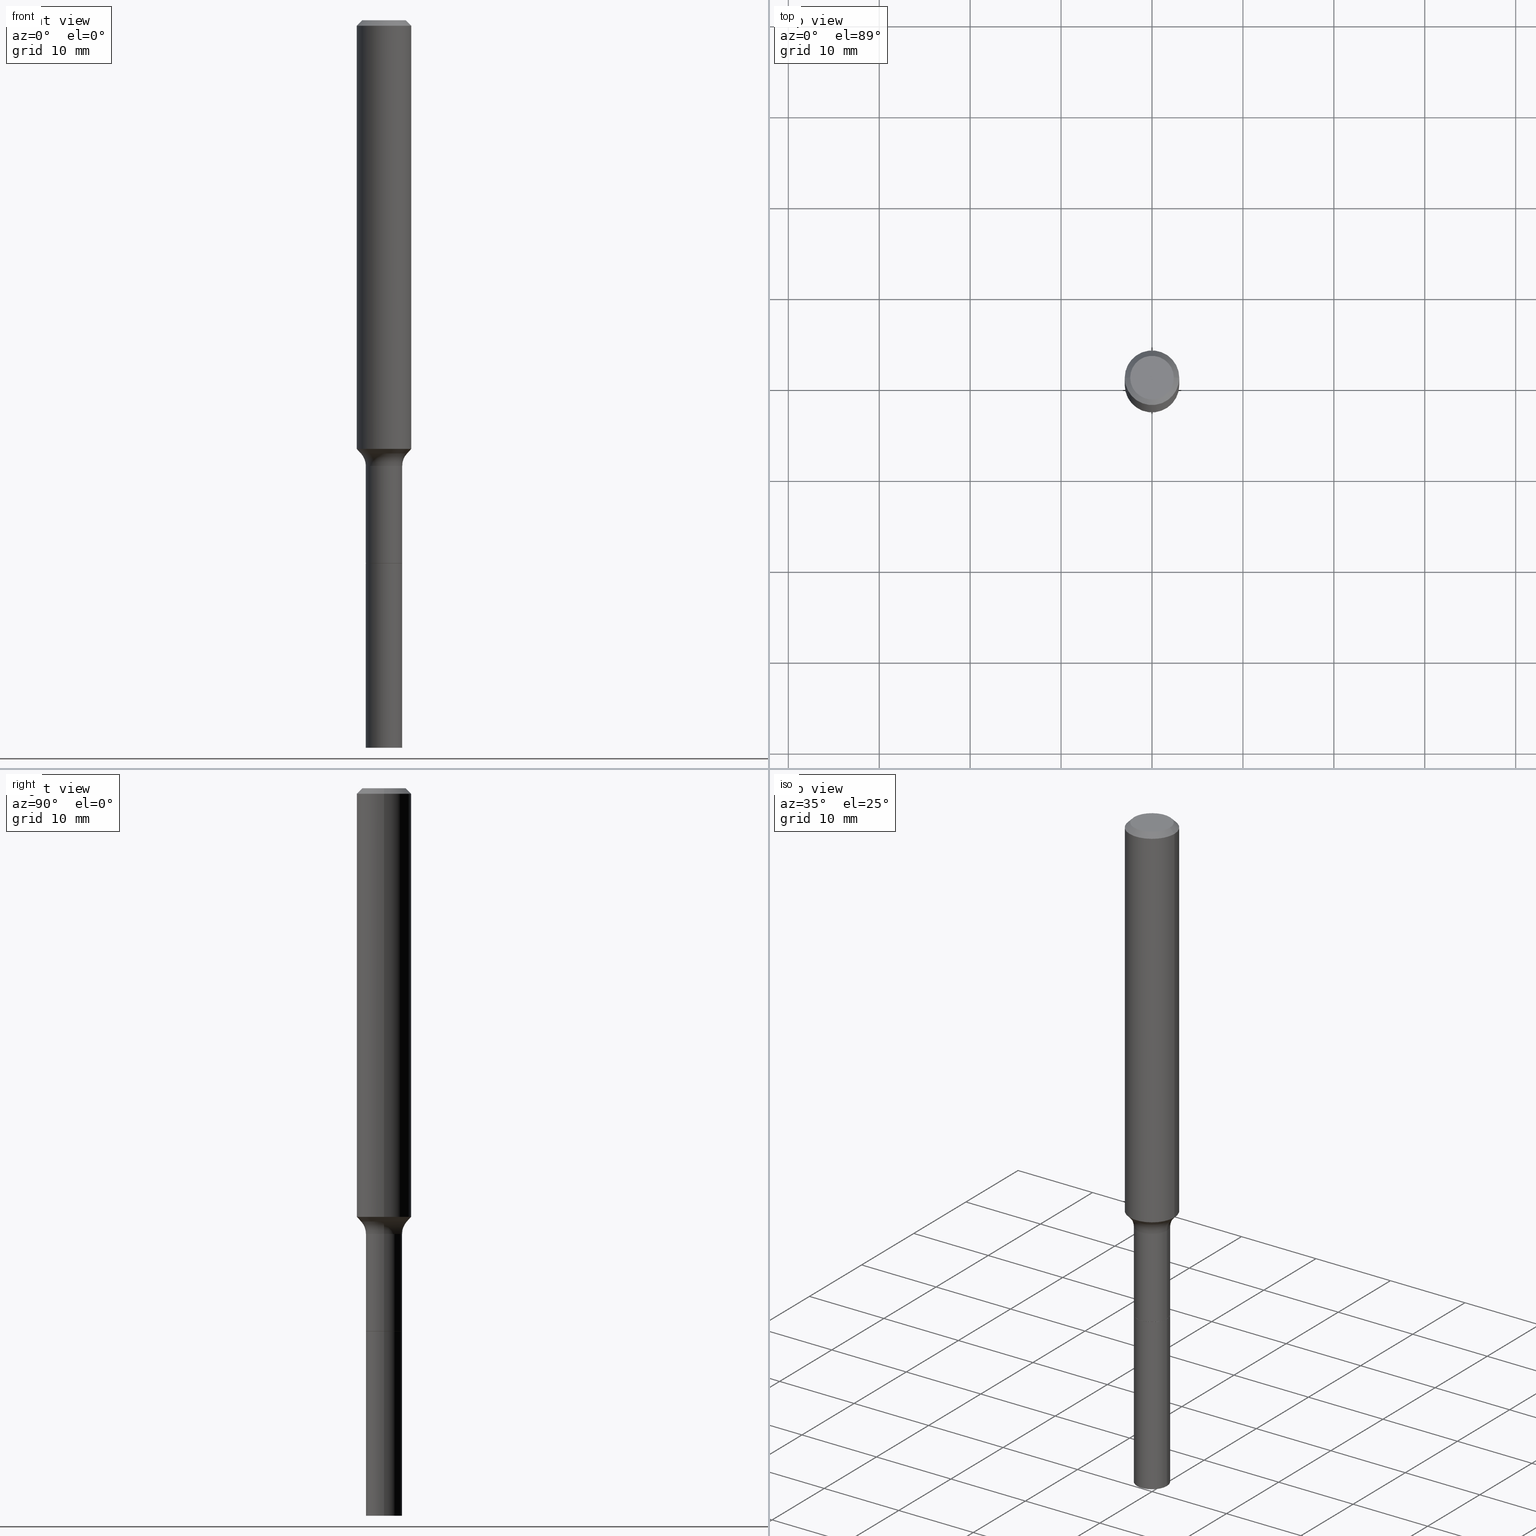
[diagram: canonical four-view strip — front | top / right | iso, engineering-drawing reading convention]
A machine part, canonical four-view strip (front | top / right | iso — engineering-drawing reading convention). The complete STEP part file that produces these views, byte-faithful:
ISO-10303-21;
HEADER;
FILE_DESCRIPTION (( 'STEP AP203' ),
    '1' );
FILE_NAME ('67826.STEP',
    '2025-04-01T15:31:12',
    ( '' ),
    ( '' ),
    'SwSTEP 2.0',
    'SolidWorks 2024',
    '' );
FILE_SCHEMA (( 'CONFIG_CONTROL_DESIGN' ));
ENDSEC;

DATA;
#1 = VECTOR ( 'NONE', #356, 39.37007874015748143 ) ;
#2 = PLANE ( 'NONE',  #381 ) ;
#3 = ORIENTED_EDGE ( 'NONE', *, *, #438, .F. ) ;
#4 = CC_DESIGN_DATE_AND_TIME_ASSIGNMENT ( #269, #466, ( #310 ) ) ;
#5 = CARTESIAN_POINT ( 'NONE',  ( 3.772893820736570314E-46, -5.386692455541008845E-32, -1.542810037565835988E-17 ) ) ;
#6 = ORIENTED_EDGE ( 'NONE', *, *, #74, .T. ) ;
#7 = CARTESIAN_POINT ( 'NONE',  ( 4.538519765556305083E-29, -6.479803392843178830E-15, -1.855889453211333029 ) ) ;
#8 = EDGE_LOOP ( 'NONE', ( #286, #362, #477, #291 ) ) ;
#9 = DIRECTION ( 'NONE',  ( 0.000000000000000000, 0.000000000000000000, 1.000000000000000000 ) ) ;
#10 = ADVANCED_FACE ( 'NONE', ( #102 ), #337, .T. ) ;
#11 = AXIS2_PLACEMENT_3D ( 'NONE', #437, #285, #401 ) ;
#12 = ORIENTED_EDGE ( 'NONE', *, *, #295, .T. ) ;
#13 = MECHANICAL_CONTEXT ( 'NONE', #39, 'mechanical' ) ;
#14 = EDGE_LOOP ( 'NONE', ( #481, #44, #135, #249 ) ) ;
#15 = DIRECTION ( 'NONE',  ( 1.000000000000000000, -6.982962677686265922E-15, 4.883557194083112901E-29 ) ) ;
#16 = ORIENTED_EDGE ( 'NONE', *, *, #338, .T. ) ;
#17 = DIRECTION ( 'NONE',  ( -1.000000000000000000, 6.982962677686266711E-15, 0.000000000000000000 ) ) ;
#18 = DIRECTION ( 'NONE',  ( -2.445468806185136597E-29, 3.491481338843145583E-15, 1.000000000000000000 ) ) ;
#19 = AXIS2_PLACEMENT_3D ( 'NONE', #299, #373, #144 ) ;
#20 = CALENDAR_DATE ( 2025, 1, 4 ) ;
#21 = PLANE ( 'NONE',  #430 ) ;
#22 = COORDINATED_UNIVERSAL_TIME_OFFSET ( 5, 0, .BEHIND. ) ;
#23 = CARTESIAN_POINT ( 'NONE',  ( 5.776197320209327532E-31, -8.246878922347559293E-17, -0.02362000000000014088 ) ) ;
#24 = SECURITY_CLASSIFICATION_LEVEL ( 'unclassified' ) ;
#25 = EDGE_CURVE ( 'NONE', #49, #185, #97, .T. ) ;
#26 = CYLINDRICAL_SURFACE ( 'NONE', #199, 0.07874999999999997280 ) ;
#27 = AXIS2_PLACEMENT_3D ( 'NONE', #288, #322, #363 ) ;
#28 = CC_DESIGN_APPROVAL ( #181, ( #310 ) ) ;
#29 = COORDINATED_UNIVERSAL_TIME_OFFSET ( 5, 0, .BEHIND. ) ;
#30 = CARTESIAN_POINT ( 'NONE',  ( -0.07875000000000018097, -9.042370425541453780E-15, -3.149600000000000399 ) ) ;
#31 = DATE_AND_TIME ( #75, #414 ) ;
#32 = DIRECTION ( 'NONE',  ( 1.000000000000000000, -6.982962677686274599E-15, 0.000000000000000000 ) ) ;
#33 = EDGE_CURVE ( 'NONE', #172, #441, #357, .T. ) ;
#34 = CARTESIAN_POINT ( 'NONE',  ( -0.09447999999999998066, 7.009847083995354710E-16, -3.085620075132147757E-17 ) ) ;
#35 = AXIS2_PLACEMENT_3D ( 'NONE', #379, #18, #103 ) ;
#36 = AXIS2_PLACEMENT_3D ( 'NONE', #490, #372, #457 ) ;
#37 = FACE_OUTER_BOUND ( 'NONE', #224, .T. ) ;
#38 = ORIENTED_EDGE ( 'NONE', *, *, #146, .F. ) ;
#39 = APPLICATION_CONTEXT ( 'configuration controlled 3d designs of mechanical parts and assemblies' ) ;
#40 = PLANE ( 'NONE',  #422 ) ;
#41 = ORIENTED_EDGE ( 'NONE', *, *, #219, .F. ) ;
#42 = CARTESIAN_POINT ( 'NONE',  ( 7.702248551960706711E-29, -1.099676962482037231E-14, -3.149600000000000399 ) ) ;
#43 = ADVANCED_FACE ( 'NONE', ( #494 ), #21, .F. ) ;
#44 = ORIENTED_EDGE ( 'NONE', *, *, #91, .T. ) ;
#45 = CIRCLE ( 'NONE', #27, 0.07875000000000018097 ) ;
#46 = DIRECTION ( 'NONE',  ( -2.445468806185136597E-29, 3.491481338843145583E-15, 1.000000000000000000 ) ) ;
#47 = CIRCLE ( 'NONE', #201, 0.09447999999999998066 ) ;
#48 = ORIENTED_EDGE ( 'NONE', *, *, #295, .F. ) ;
#49 = VERTEX_POINT ( 'NONE', #417 ) ;
#50 = ADVANCED_FACE ( 'NONE', ( #138 ), #122, .T. ) ;
#51 = MANIFOLD_SOLID_BREP ( 'Body-Move/Copy2[2]', #450 ) ;
#52 = VERTEX_POINT ( 'NONE', #267 ) ;
#53 = LINE ( 'NONE', #298, #107 ) ;
#54 = AXIS2_PLACEMENT_3D ( 'NONE', #234, #280, #309 ) ;
#55 = ORIENTED_EDGE ( 'NONE', *, *, #316, .T. ) ;
#56 = VECTOR ( 'NONE', #320, 39.37007874015748143 ) ;
#57 = CARTESIAN_POINT ( 'NONE',  ( -0.1180999999999999966, 7.422191030112725094E-16, -0.02362000000000014088 ) ) ;
#58 = ORIENTED_EDGE ( 'NONE', *, *, #101, .F. ) ;
#59 = DIRECTION ( 'NONE',  ( -2.445468806185136597E-29, 3.491481338843145583E-15, 1.000000000000000000 ) ) ;
#60 = DIRECTION ( 'NONE',  ( -2.438088387897960049E-29, 3.491481338843145188E-15, 1.000000000000000000 ) ) ;
#61 = DIRECTION ( 'NONE',  ( 0.7071067811866199593, -2.468850131083015945E-15, 0.7071067811864750752 ) ) ;
#62 = CARTESIAN_POINT ( 'NONE',  ( 0.000000000000000000, 0.000000000000000000, 0.000000000000000000 ) ) ;
#63 = AXIS2_PLACEMENT_3D ( 'NONE', #336, #463, #265 ) ;
#64 = PERSON_AND_ORGANIZATION ( #253, #261 ) ;
#65 = CARTESIAN_POINT ( 'NONE',  ( 0.000000000000000000, 0.000000000000000000, 0.000000000000000000 ) ) ;
#66 = ADVANCED_FACE ( 'NONE', ( #421 ), #382, .T. ) ;
#67 = LINE ( 'NONE', #114, #132 ) ;
#68 = ORIENTED_EDGE ( 'NONE', *, *, #448, .T. ) ;
#69 = CARTESIAN_POINT ( 'NONE',  ( 0.07825000000000000011, -8.753492864613649504E-15, -2.350600000000000467 ) ) ;
#70 = AXIS2_PLACEMENT_3D ( 'NONE', #23, #229, #110 ) ;
#71 = CONICAL_SURFACE ( 'NONE', #151, 0.1180999999999999966, 0.7853981633974463916 ) ;
#72 = APPROVAL_DATE_TIME ( #305, #469 ) ;
#73 = CARTESIAN_POINT ( 'NONE',  ( -0.1181000000000001077, 8.391509709326790846E-16, -5.809262341591049389E-30 ) ) ;
#74 = EDGE_CURVE ( 'NONE', #204, #165, #413, .T. ) ;
#75 = CALENDAR_DATE ( 2025, 1, 4 ) ;
#76 = CARTESIAN_POINT ( 'NONE',  ( -0.1002417038704665475, -5.834407482595595878E-15, -1.875040131195000237 ) ) ;
#77 = ADVANCED_FACE ( 'NONE', ( #136 ), #471, .T. ) ;
#78 = DIRECTION ( 'NONE',  ( -6.982962677686266711E-15, -1.000000000000000000, 3.491481338843145583E-15 ) ) ;
#79 =( GEOMETRIC_REPRESENTATION_CONTEXT ( 3 ) GLOBAL_UNCERTAINTY_ASSIGNED_CONTEXT ( ( #111 ) ) GLOBAL_UNIT_ASSIGNED_CONTEXT ( ( #184, #262, #94 ) ) REPRESENTATION_CONTEXT ( 'NONE', 'WORKASPACE' ) );
#80 = CARTESIAN_POINT ( 'NONE',  ( 4.538519765556305083E-29, -6.479803392843178830E-15, -1.855889453211333029 ) ) ;
#81 = ORIENTED_EDGE ( 'NONE', *, *, #319, .F. ) ;
#82 = CC_DESIGN_PERSON_AND_ORGANIZATION_ASSIGNMENT ( #434, #308, ( #310 ) ) ;
#83 = CARTESIAN_POINT ( 'NONE',  ( 0.1587499999999999190, -7.845707716514428206E-15, -1.929599999999999982 ) ) ;
#84 = EDGE_LOOP ( 'NONE', ( #289, #496, #518, #174 ) ) ;
#85 = DIRECTION ( 'NONE',  ( -2.445468806185136597E-29, 3.491481338843145583E-15, 1.000000000000000000 ) ) ;
#86 = ORIENTED_EDGE ( 'NONE', *, *, #273, .T. ) ;
#87 = AXIS2_PLACEMENT_3D ( 'NONE', #161, #118, #397 ) ;
#88 = CARTESIAN_POINT ( 'NONE',  ( 4.585352151182659149E-29, -6.546667627649346725E-15, -1.875040131195000237 ) ) ;
#89 = EDGE_CURVE ( 'NONE', #283, #486, #459, .T. ) ;
#90 = ORIENTED_EDGE ( 'NONE', *, *, #108, .F. ) ;
#91 = EDGE_CURVE ( 'NONE', #165, #220, #67, .T. ) ;
#92 = DIRECTION ( 'NONE',  ( -2.445468806185136877E-29, 3.491481338843145188E-15, 1.000000000000000000 ) ) ;
#93 = DIRECTION ( 'NONE',  ( 1.000000000000000000, -6.982962677686267499E-15, 4.875432709231658792E-29 ) ) ;
#94 =( NAMED_UNIT ( * ) SI_UNIT ( $, .STERADIAN. ) SOLID_ANGLE_UNIT ( ) );
#95 = ORIENTED_EDGE ( 'NONE', *, *, #475, .F. ) ;
#96 = LENGTH_MEASURE_WITH_UNIT ( LENGTH_MEASURE( 0.02539999999999999897 ), #495 );
#97 = CIRCLE ( 'NONE', #63, 0.1002417038704665475 ) ;
#98 = VERTEX_POINT ( 'NONE', #227 ) ;
#99 = APPROVAL_PERSON_ORGANIZATION ( #187, #469, #386 ) ;
#100 = PLANE ( 'NONE',  #504 ) ;
#101 = EDGE_CURVE ( 'NONE', #125, #243, #270, .T. ) ;
#102 = FACE_OUTER_BOUND ( 'NONE', #359, .T. ) ;
#103 = DIRECTION ( 'NONE',  ( 1.000000000000000000, -6.982962677686267499E-15, 0.000000000000000000 ) ) ;
#104 = PERSON_AND_ORGANIZATION ( #253, #261 ) ;
#105 = DIRECTION ( 'NONE',  ( -0.6819983600624925923, 7.399397606724264488E-15, 0.7313537016191760110 ) ) ;
#106 = CONICAL_SURFACE ( 'NONE', #54, 0.1002417038704665475, 0.7504915783575536459 ) ;
#107 = VECTOR ( 'NONE', #61, 39.37007874015748143 ) ;
#108 = EDGE_CURVE ( 'NONE', #52, #247, #390, .T. ) ;
#109 = CALENDAR_DATE ( 2025, 1, 4 ) ;
#110 = DIRECTION ( 'NONE',  ( 1.000000000000000000, -6.982962677686266711E-15, 0.000000000000000000 ) ) ;
#111 = UNCERTAINTY_MEASURE_WITH_UNIT (LENGTH_MEASURE( 1.000000000000000082E-05 ), #184, 'distance_accuracy_value', 'NONE');
#112 = PERSON_AND_ORGANIZATION ( #253, #261 ) ;
#113 = CARTESIAN_POINT ( 'NONE',  ( 0.07875000000000000056, -8.756984345952492512E-15, -2.350600000000000467 ) ) ;
#114 = CARTESIAN_POINT ( 'NONE',  ( 0.1180999999999999966, -8.926936027602933910E-16, -0.02362000000000014088 ) ) ;
#115 = CIRCLE ( 'NONE', #176, 0.07875000000000000056 ) ;
#116 = VECTOR ( 'NONE', #140, 39.37007874015748143 ) ;
#117 = DIRECTION ( 'NONE',  ( -2.445468806185136597E-29, 3.491481338843145583E-15, 1.000000000000000000 ) ) ;
#118 = DIRECTION ( 'NONE',  ( -2.445468806185136597E-29, 3.491481338843145583E-15, 1.000000000000000000 ) ) ;
#119 = DIRECTION ( 'NONE',  ( -2.445468806185136597E-29, 3.491481338843145583E-15, 1.000000000000000000 ) ) ;
#120 = ORIENTED_EDGE ( 'NONE', *, *, #345, .T. ) ;
#121 = CC_DESIGN_PERSON_AND_ORGANIZATION_ASSIGNMENT ( #311, #279, ( #349 ) ) ;
#122 = CONICAL_SURFACE ( 'NONE', #35, 0.07825000000000000011, 0.7853981633975507526 ) ;
#123 = AXIS2_PLACEMENT_3D ( 'NONE', #318, #119, #179 ) ;
#124 = DIRECTION ( 'NONE',  ( -2.445468806185136597E-29, 3.491481338843145583E-15, 1.000000000000000000 ) ) ;
#125 = VERTEX_POINT ( 'NONE', #232 ) ;
#126 = PRODUCT ( '67826', '67826', '', ( #13 ) ) ;
#127 = DIRECTION ( 'NONE',  ( 1.000000000000000000, -6.982962677686267499E-15, 4.875432709231658792E-29 ) ) ;
#128 = ORIENTED_EDGE ( 'NONE', *, *, #512, .T. ) ;
#129 = DIRECTION ( 'NONE',  ( 1.000000000000000000, -6.982962677686268288E-15, 0.000000000000000000 ) ) ;
#130 = ADVANCED_FACE ( 'NONE', ( #389 ), #106, .T. ) ;
#131 = ORIENTED_EDGE ( 'NONE', *, *, #512, .F. ) ;
#132 = VECTOR ( 'NONE', #433, 39.37007874015748143 ) ;
#133 = CARTESIAN_POINT ( 'NONE',  ( -0.07825000000000000011, -7.648427117178309273E-15, -2.350600000000000467 ) ) ;
#134 = CC_DESIGN_SECURITY_CLASSIFICATION ( #293, ( #349 ) ) ;
#135 = ORIENTED_EDGE ( 'NONE', *, *, #146, .T. ) ;
#136 = FACE_OUTER_BOUND ( 'NONE', #84, .T. ) ;
#137 = LINE ( 'NONE', #493, #116 ) ;
#138 = FACE_OUTER_BOUND ( 'NONE', #449, .T. ) ;
#139 = CC_DESIGN_PERSON_AND_ORGANIZATION_ASSIGNMENT ( #510, #384, ( #126 ) ) ;
#140 = DIRECTION ( 'NONE',  ( -2.445468806185136877E-29, 3.491481338843145188E-15, 1.000000000000000000 ) ) ;
#141 = VECTOR ( 'NONE', #467, 39.37007874015748143 ) ;
#142 = ORIENTED_EDGE ( 'NONE', *, *, #391, .F. ) ;
#143 = CARTESIAN_POINT ( 'NONE',  ( 0.07875000000000000056, -8.755238605283071797E-15, -2.350100000000000300 ) ) ;
#144 = DIRECTION ( 'NONE',  ( 1.000000000000000000, -6.982962677686267499E-15, 0.000000000000000000 ) ) ;
#145 = APPROVAL_STATUS ( 'not_yet_approved' ) ;
#146 = EDGE_CURVE ( 'NONE', #220, #247, #300, .T. ) ;
#147 = EDGE_LOOP ( 'NONE', ( #90, #452, #128, #342 ) ) ;
#148 = CALENDAR_DATE ( 2025, 1, 4 ) ;
#149 = LINE ( 'NONE', #468, #141 ) ;
#150 = CIRCLE ( 'NONE', #11, 0.07825000000000000011 ) ;
#151 = AXIS2_PLACEMENT_3D ( 'NONE', #296, #418, #17 ) ;
#152 = APPROVAL_DATE_TIME ( #155, #181 ) ;
#153 = DIRECTION ( 'NONE',  ( -2.445468806185136597E-29, 3.491481338843145583E-15, 1.000000000000000000 ) ) ;
#154 = EDGE_LOOP ( 'NONE', ( #41, #294, #16, #86 ) ) ;
#155 = DATE_AND_TIME ( #148, #405 ) ;
#156 = DIRECTION ( 'NONE',  ( 1.000000000000000000, -6.982962677686266711E-15, 0.000000000000000000 ) ) ;
#157 = CYLINDRICAL_SURFACE ( 'NONE', #193, 0.07874999999999997280 ) ;
#158 = CIRCLE ( 'NONE', #374, 0.07999999999999990452 ) ;
#159 = VECTOR ( 'NONE', #92, 39.37007874015748143 ) ;
#160 = LINE ( 'NONE', #76, #465 ) ;
#161 = CARTESIAN_POINT ( 'NONE',  ( 4.718776608414840041E-29, -6.737162391431733996E-15, -1.929599999999999982 ) ) ;
#162 = ADVANCED_FACE ( 'NONE', ( #387 ), #26, .T. ) ;
#163 = VERTEX_POINT ( 'NONE', #30 ) ;
#164 = CARTESIAN_POINT ( 'NONE',  ( -0.07874999999999994504, -6.911693938512427817E-15, -1.929599999999999982 ) ) ;
#165 = VERTEX_POINT ( 'NONE', #236 ) ;
#166 = AXIS2_PLACEMENT_3D ( 'NONE', #62, #225, #256 ) ;
#167 = CIRCLE ( 'NONE', #36, 0.07874999999999994504 ) ;
#168 = DIRECTION ( 'NONE',  ( 2.438088387897960049E-29, -3.491481338843145188E-15, -1.000000000000000000 ) ) ;
#169 = EDGE_LOOP ( 'NONE', ( #6, #183 ) ) ;
#170 = EDGE_CURVE ( 'NONE', #185, #49, #347, .T. ) ;
#171 = FACE_OUTER_BOUND ( 'NONE', #206, .T. ) ;
#172 = VERTEX_POINT ( 'NONE', #69 ) ;
#173 = DIRECTION ( 'NONE',  ( -2.445468806185136877E-29, 3.491481338843145188E-15, 1.000000000000000000 ) ) ;
#174 = ORIENTED_EDGE ( 'NONE', *, *, #189, .T. ) ;
#175 = DIMENSIONAL_EXPONENTS ( 1.000000000000000000, 0.000000000000000000, 0.000000000000000000, 0.000000000000000000, 0.000000000000000000, 0.000000000000000000, 0.000000000000000000 ) ;
#176 = AXIS2_PLACEMENT_3D ( 'NONE', #435, #427, #464 ) ;
#177 = DIRECTION ( 'NONE',  ( -0.7071067811865461294, 2.468850131082242072E-15, -0.7071067811865489050 ) ) ;
#178 = ORIENTED_EDGE ( 'NONE', *, *, #89, .F. ) ;
#179 = DIRECTION ( 'NONE',  ( 1.000000000000000000, -6.982962677686265922E-15, 4.883557194083112901E-29 ) ) ;
#180 = EDGE_LOOP ( 'NONE', ( #376, #55, #400, #178 ) ) ;
#181 = APPROVAL ( #505, 'UNSPECIFIED' ) ;
#182 = DIRECTION ( 'NONE',  ( 1.000000000000000000, -6.982962677686267499E-15, 0.000000000000000000 ) ) ;
#183 = ORIENTED_EDGE ( 'NONE', *, *, #404, .T. ) ;
#184 =( CONVERSION_BASED_UNIT ( 'INCH', #96 ) LENGTH_UNIT ( ) NAMED_UNIT ( #175 ) );
#185 = VERTEX_POINT ( 'NONE', #346 ) ;
#186 = CC_DESIGN_APPROVAL ( #507, ( #349 ) ) ;
#187 = PERSON_AND_ORGANIZATION ( #253, #261 ) ;
#188 = DIRECTION ( 'NONE',  ( -2.445468806185136597E-29, 3.491481338843145583E-15, 1.000000000000000000 ) ) ;
#189 = EDGE_CURVE ( 'NONE', #247, #220, #365, .T. ) ;
#190 = CARTESIAN_POINT ( 'NONE',  ( -0.1587499999999999190, -5.609175798412575330E-15, -1.929599999999999982 ) ) ;
#191 = CALENDAR_DATE ( 2025, 1, 4 ) ;
#192 = CARTESIAN_POINT ( 'NONE',  ( 5.748318975818783261E-29, -8.207076035084699166E-15, -2.350600000000000467 ) ) ;
#193 = AXIS2_PLACEMENT_3D ( 'NONE', #317, #473, #198 ) ;
#194 = AXIS2_PLACEMENT_3D ( 'NONE', #7, #223, #182 ) ;
#195 = COORDINATED_UNIVERSAL_TIME_OFFSET ( 5, 0, .BEHIND. ) ;
#196 = CARTESIAN_POINT ( 'NONE',  ( 4.585352151182659149E-29, -6.546667627649346725E-15, -1.875040131195000237 ) ) ;
#197 = DIRECTION ( 'NONE',  ( 1.000000000000000000, -6.982962677686267499E-15, 4.876176775795935793E-29 ) ) ;
#198 = DIRECTION ( 'NONE',  ( 1.000000000000000000, -6.982962677686267499E-15, 4.876176775795935793E-29 ) ) ;
#199 = AXIS2_PLACEMENT_3D ( 'NONE', #65, #275, #197 ) ;
#200 = CIRCLE ( 'NONE', #194, 0.1181000000000002187 ) ;
#201 = AXIS2_PLACEMENT_3D ( 'NONE', #367, #476, #127 ) ;
#202 = ADVANCED_FACE ( 'NONE', ( #385 ), #470, .T. ) ;
#203 = DIRECTION ( 'NONE',  ( 1.000000000000000000, -6.982962677686254878E-15, 0.000000000000000000 ) ) ;
#204 = VERTEX_POINT ( 'NONE', #34 ) ;
#205 = DIRECTION ( 'NONE',  ( -2.445468806185136597E-29, 3.491481338843145583E-15, 1.000000000000000000 ) ) ;
#206 = EDGE_LOOP ( 'NONE', ( #304, #216 ) ) ;
#207 = CARTESIAN_POINT ( 'NONE',  ( 5.748318975818783261E-29, -8.207076035084699166E-15, -2.350600000000000467 ) ) ;
#208 = ORIENTED_EDGE ( 'NONE', *, *, #448, .F. ) ;
#209 = CIRCLE ( 'NONE', #87, 0.07874999999999994504 ) ;
#210 = CARTESIAN_POINT ( 'NONE',  ( 0.1002417038704665475, -7.246651704524493594E-15, -1.875040131195000237 ) ) ;
#211 = ORIENTED_EDGE ( 'NONE', *, *, #498, .F. ) ;
#212 = EDGE_CURVE ( 'NONE', #486, #283, #115, .T. ) ;
#213 = CARTESIAN_POINT ( 'NONE',  ( 0.1181000000000002187, -7.304491285077929459E-15, -1.855889453211333029 ) ) ;
#214 = EDGE_LOOP ( 'NONE', ( #81, #142 ) ) ;
#215 = CARTESIAN_POINT ( 'NONE',  ( 0.000000000000000000, 0.000000000000000000, 0.000000000000000000 ) ) ;
#216 = ORIENTED_EDGE ( 'NONE', *, *, #246, .T. ) ;
#217 = AXIS2_PLACEMENT_3D ( 'NONE', #499, #302, #344 ) ;
#218 = AXIS2_PLACEMENT_3D ( 'NONE', #239, #46, #282 ) ;
#219 = EDGE_CURVE ( 'NONE', #185, #402, #241, .T. ) ;
#220 = VERTEX_POINT ( 'NONE', #503 ) ;
#221 = DIRECTION ( 'NONE',  ( -1.000000000000000000, 6.982962677686265922E-15, -4.876176775795935793E-29 ) ) ;
#222 = ORIENTED_EDGE ( 'NONE', *, *, #383, .T. ) ;
#223 = DIRECTION ( 'NONE',  ( -2.445468806185136597E-29, 3.491481338843145583E-15, 1.000000000000000000 ) ) ;
#224 = EDGE_LOOP ( 'NONE', ( #377, #222, #240, #58 ) ) ;
#225 = DIRECTION ( 'NONE',  ( -2.445468806185136597E-29, 3.491481338843145583E-15, 1.000000000000000000 ) ) ;
#226 = APPROVAL_PERSON_ORGANIZATION ( #424, #507, #230 ) ;
#227 = CARTESIAN_POINT ( 'NONE',  ( 0.07874999999999994504, -7.287070702299526553E-15, -1.929599999999999982 ) ) ;
#228 = APPROVAL_DATE_TIME ( #31, #507 ) ;
#229 = DIRECTION ( 'NONE',  ( -2.445468806185136597E-29, 3.491481338843145583E-15, 1.000000000000000000 ) ) ;
#230 = APPROVAL_ROLE ( '' ) ;
#231 = ADVANCED_FACE ( 'NONE', ( #276 ), #157, .T. ) ;
#232 = CARTESIAN_POINT ( 'NONE',  ( 0.07875000000000018097, -1.154667793568816723E-14, -3.149600000000000399 ) ) ;
#233 = CC_DESIGN_APPROVAL ( #469, ( #293 ) ) ;
#234 = CARTESIAN_POINT ( 'NONE',  ( 4.585352151182659149E-29, -6.546667627649346725E-15, -1.875040131195000237 ) ) ;
#235 = PERSON_AND_ORGANIZATION_ROLE ( 'classification_officer' ) ;
#236 = CARTESIAN_POINT ( 'NONE',  ( 0.09447999999999998066, -7.704367267948738690E-16, -3.085620075131172158E-17 ) ) ;
#237 = EDGE_CURVE ( 'NONE', #185, #52, #160, .T. ) ;
#238 = EDGE_CURVE ( 'NONE', #441, #283, #149, .T. ) ;
#239 = CARTESIAN_POINT ( 'NONE',  ( 5.748318975818783261E-29, -8.207076035084699166E-15, -2.350600000000000467 ) ) ;
#240 = ORIENTED_EDGE ( 'NONE', *, *, #361, .F. ) ;
#241 = CIRCLE ( 'NONE', #487, 0.07999999999999990452 ) ;
#242 = CARTESIAN_POINT ( 'NONE',  ( -0.1180999999999999966, -2.441985120100647369E-15, -0.02362000000000014088 ) ) ;
#243 = VERTEX_POINT ( 'NONE', #113 ) ;
#244 = PRODUCT_DEFINITION_SHAPE ( 'NONE', 'NONE',  #310 ) ;
#245 = CYLINDRICAL_SURFACE ( 'NONE', #307, 0.07875000000000008382 ) ;
#246 = EDGE_CURVE ( 'NONE', #458, #243, #478, .T. ) ;
#247 = VERTEX_POINT ( 'NONE', #242 ) ;
#248 = DIRECTION ( 'NONE',  ( 1.000000000000000000, -6.982962677686267499E-15, 0.000000000000000000 ) ) ;
#249 = ORIENTED_EDGE ( 'NONE', *, *, #484, .F. ) ;
#250 = AXIS2_PLACEMENT_3D ( 'NONE', #297, #514, #352 ) ;
#251 = AXIS2_PLACEMENT_3D ( 'NONE', #42, #447, #252 ) ;
#252 = DIRECTION ( 'NONE',  ( 1.000000000000000000, -6.982962677686269866E-15, 0.000000000000000000 ) ) ;
#253 = PERSON ( 'UNSPECIFIED', 'UNSPECIFIED', 'UNSPECIFIED', ('UNSPECIFIED'), ('UNSPECIFIED'), ('UNSPECIFIED') ) ;
#254 = ORIENTED_EDGE ( 'NONE', *, *, #170, .F. ) ;
#255 = CARTESIAN_POINT ( 'NONE',  ( 0.07874999999999997280, -5.499083108677933457E-16, 3.839989210939298316E-30 ) ) ;
#256 = DIRECTION ( 'NONE',  ( 1.000000000000000000, -6.982962677686266711E-15, 4.876176775795935793E-29 ) ) ;
#257 = ADVANCED_FACE ( 'NONE', ( #37 ), #245, .T. ) ;
#258 = DIRECTION ( 'NONE',  ( 1.000000000000000000, 0.000000000000000000, 0.000000000000000000 ) ) ;
#259 = ORIENTED_EDGE ( 'NONE', *, *, #33, .T. ) ;
#260 = CLOSED_SHELL ( 'NONE', ( #257, #456, #202, #396 ) ) ;
#261 = ORGANIZATION ( 'UNSPECIFIED', 'UNSPECIFIED', '' ) ;
#262 =( NAMED_UNIT ( * ) PLANE_ANGLE_UNIT ( ) SI_UNIT ( $, .RADIAN. ) );
#263 = DIRECTION ( 'NONE',  ( 1.000000000000000000, -6.982962677686265922E-15, 4.876176775795935793E-29 ) ) ;
#264 = FACE_OUTER_BOUND ( 'NONE', #14, .T. ) ;
#265 = DIRECTION ( 'NONE',  ( 1.000000000000000000, -6.982962677686266711E-15, 0.000000000000000000 ) ) ;
#266 = LINE ( 'NONE', #331, #480 ) ;
#267 = CARTESIAN_POINT ( 'NONE',  ( -0.1181000000000002187, -5.640652421910499055E-15, -1.855889453211333029 ) ) ;
#268 = AXIS2_PLACEMENT_3D ( 'NONE', #425, #117, #32 ) ;
#269 = DATE_AND_TIME ( #109, #366 ) ;
#270 = LINE ( 'NONE', #392, #355 ) ;
#271 = APPROVAL_STATUS ( 'not_yet_approved' ) ;
#272 = CARTESIAN_POINT ( 'NONE',  ( 5.748318975818783261E-29, -8.207076035084699166E-15, -2.350600000000000467 ) ) ;
#273 = EDGE_CURVE ( 'NONE', #98, #402, #209, .T. ) ;
#274 = PERSON_AND_ORGANIZATION_ROLE ( 'design_supplier' ) ;
#275 = DIRECTION ( 'NONE',  ( -2.445468806185136597E-29, 3.491481338843145583E-15, 1.000000000000000000 ) ) ;
#276 = FACE_OUTER_BOUND ( 'NONE', #328, .T. ) ;
#277 = CIRCLE ( 'NONE', #375, 0.1181000000000002187 ) ;
#278 = CIRCLE ( 'NONE', #218, 0.07875000000000000056 ) ;
#279 = PERSON_AND_ORGANIZATION_ROLE ( 'creator' ) ;
#280 = DIRECTION ( 'NONE',  ( -2.445468806185136597E-29, 3.491481338843145583E-15, 1.000000000000000000 ) ) ;
#281 = DIRECTION ( 'NONE',  ( 1.000000000000000000, -6.982962677686267499E-15, 0.000000000000000000 ) ) ;
#282 = DIRECTION ( 'NONE',  ( 1.000000000000000000, -6.982962677686261977E-15, 0.000000000000000000 ) ) ;
#283 = VERTEX_POINT ( 'NONE', #439 ) ;
#284 = VECTOR ( 'NONE', #177, 39.37007874015748143 ) ;
#285 = DIRECTION ( 'NONE',  ( -2.445468806185136597E-29, 3.491481338843145583E-15, 1.000000000000000000 ) ) ;
#286 = ORIENTED_EDGE ( 'NONE', *, *, #383, .F. ) ;
#287 = CC_DESIGN_PERSON_AND_ORGANIZATION_ASSIGNMENT ( #64, #235, ( #293 ) ) ;
#288 = CARTESIAN_POINT ( 'NONE',  ( 7.702248551960706711E-29, -1.099676962482037231E-14, -3.149600000000000399 ) ) ;
#289 = ORIENTED_EDGE ( 'NONE', *, *, #91, .F. ) ;
#290 = FACE_OUTER_BOUND ( 'NONE', #180, .T. ) ;
#291 = ORIENTED_EDGE ( 'NONE', *, *, #246, .F. ) ;
#292 = VECTOR ( 'NONE', #399, 39.37007874015748143 ) ;
#293 = SECURITY_CLASSIFICATION ( '', '', #24 ) ;
#294 = ORIENTED_EDGE ( 'NONE', *, *, #25, .F. ) ;
#295 = EDGE_CURVE ( 'NONE', #49, #368, #485, .T. ) ;
#296 = CARTESIAN_POINT ( 'NONE',  ( 5.776197320209327532E-31, -8.246878922347559293E-17, -0.02362000000000014088 ) ) ;
#297 = CARTESIAN_POINT ( 'NONE',  ( 5.776197320209327532E-31, -8.246878922347559293E-17, -0.02362000000000014088 ) ) ;
#298 = CARTESIAN_POINT ( 'NONE',  ( 0.07825000000000000011, -8.753492864613649504E-15, -2.350600000000000467 ) ) ;
#299 = CARTESIAN_POINT ( 'NONE',  ( 5.748318975818783261E-29, -8.207076035084699166E-15, -2.350600000000000467 ) ) ;
#300 = CIRCLE ( 'NONE', #70, 0.1180999999999999966 ) ;
#301 = CARTESIAN_POINT ( 'NONE',  ( 7.702248551960706711E-29, -1.099676962482037231E-14, -3.149600000000000399 ) ) ;
#302 = DIRECTION ( 'NONE',  ( -2.445468806185136597E-29, 3.491481338843145583E-15, 1.000000000000000000 ) ) ;
#303 = ADVANCED_FACE ( 'NONE', ( #327 ), #40, .F. ) ;
#304 = ORIENTED_EDGE ( 'NONE', *, *, #361, .T. ) ;
#305 = DATE_AND_TIME ( #191, #513 ) ;
#306 = CARTESIAN_POINT ( 'NONE',  ( 5.748318975818783261E-29, -8.207076035084699166E-15, -2.350600000000000467 ) ) ;
#307 = AXIS2_PLACEMENT_3D ( 'NONE', #207, #124, #203 ) ;
#308 = PERSON_AND_ORGANIZATION_ROLE ( 'creator' ) ;
#309 = DIRECTION ( 'NONE',  ( 1.000000000000000000, -6.982962677686266711E-15, 0.000000000000000000 ) ) ;
#310 = PRODUCT_DEFINITION ( 'UNKNOWN', '', #349, #428 ) ;
#311 = PERSON_AND_ORGANIZATION ( #253, #261 ) ;
#312 = DIRECTION ( 'NONE',  ( -1.000000000000000000, 7.105427357601006592E-15, 0.000000000000000000 ) ) ;
#313 = DATE_AND_TIME ( #20, #340 ) ;
#314 = DIRECTION ( 'NONE',  ( 1.000000000000000000, -6.982962677686254878E-15, 0.000000000000000000 ) ) ;
#315 = SHAPE_DEFINITION_REPRESENTATION ( #244, #436 ) ;
#316 = EDGE_CURVE ( 'NONE', #441, #172, #150, .T. ) ;
#317 = CARTESIAN_POINT ( 'NONE',  ( 0.000000000000000000, 0.000000000000000000, 0.000000000000000000 ) ) ;
#318 = CARTESIAN_POINT ( 'NONE',  ( 4.718776608414840041E-29, -6.737162391431733996E-15, -1.929599999999999982 ) ) ;
#319 = EDGE_CURVE ( 'NONE', #125, #163, #45, .T. ) ;
#320 = DIRECTION ( 'NONE',  ( -2.445468806185136877E-29, 3.491481338843145188E-15, 1.000000000000000000 ) ) ;
#321 = ORIENTED_EDGE ( 'NONE', *, *, #492, .F. ) ;
#322 = DIRECTION ( 'NONE',  ( -2.445468806185136597E-29, 3.491481338843145583E-15, 1.000000000000000000 ) ) ;
#323 = ORIENTED_EDGE ( 'NONE', *, *, #170, .T. ) ;
#324 = AXIS2_PLACEMENT_3D ( 'NONE', #272, #205, #394 ) ;
#325 = CONICAL_SURFACE ( 'NONE', #440, 0.1002417038704665475, 0.7504915783575536459 ) ;
#326 = ADVANCED_FACE ( 'NONE', ( #290 ), #380, .T. ) ;
#327 = FACE_OUTER_BOUND ( 'NONE', #169, .T. ) ;
#328 = EDGE_LOOP ( 'NONE', ( #446, #68, #395, #321 ) ) ;
#329 = FACE_OUTER_BOUND ( 'NONE', #461, .T. ) ;
#330 = EDGE_LOOP ( 'NONE', ( #254, #444, #398, #410 ) ) ;
#331 = CARTESIAN_POINT ( 'NONE',  ( 0.1181000000000001077, -8.246878922347488542E-16, 5.758764772215005345E-30 ) ) ;
#332 = ORIENTED_EDGE ( 'NONE', *, *, #108, .T. ) ;
#333 = AXIS2_PLACEMENT_3D ( 'NONE', #509, #511, #156 ) ;
#334 = ORIENTED_EDGE ( 'NONE', *, *, #237, .F. ) ;
#335 = DIRECTION ( 'NONE',  ( 2.438088387897960049E-29, -3.491481338843145188E-15, -1.000000000000000000 ) ) ;
#336 = CARTESIAN_POINT ( 'NONE',  ( 4.585352151182659149E-29, -6.546667627649346725E-15, -1.875040131195000237 ) ) ;
#337 = CYLINDRICAL_SURFACE ( 'NONE', #217, 0.1181000000000001077 ) ;
#338 = EDGE_CURVE ( 'NONE', #49, #98, #158, .T. ) ;
#339 = AXIS2_PLACEMENT_3D ( 'NONE', #196, #429, #354 ) ;
#340 = LOCAL_TIME ( 11, 31, 12.00000000000000000, #195 ) ;
#341 = FACE_OUTER_BOUND ( 'NONE', #330, .T. ) ;
#342 = ORIENTED_EDGE ( 'NONE', *, *, #189, .F. ) ;
#343 = COORDINATED_UNIVERSAL_TIME_OFFSET ( 5, 0, .BEHIND. ) ;
#344 = DIRECTION ( 'NONE',  ( 1.000000000000000000, -6.982962677686266711E-15, 4.876176775795935793E-29 ) ) ;
#345 = EDGE_CURVE ( 'NONE', #368, #52, #277, .T. ) ;
#346 = CARTESIAN_POINT ( 'NONE',  ( -0.1002417038704664642, -5.834407482595595878E-15, -1.875040131195000237 ) ) ;
#347 = CIRCLE ( 'NONE', #339, 0.1002417038704665475 ) ;
#348 = DATE_TIME_ROLE ( 'classification_date' ) ;
#349 = PRODUCT_DEFINITION_FORMATION_WITH_SPECIFIED_SOURCE ( 'ANY', '', #126, .NOT_KNOWN. ) ;
#350 = DIRECTION ( 'NONE',  ( -2.445468806185136877E-29, 3.491481338843145188E-15, 1.000000000000000000 ) ) ;
#351 = ORIENTED_EDGE ( 'NONE', *, *, #89, .T. ) ;
#352 = DIRECTION ( 'NONE',  ( -1.000000000000000000, 6.982962677686266711E-15, 0.000000000000000000 ) ) ;
#353 = EDGE_LOOP ( 'NONE', ( #364, #412 ) ) ;
#354 = DIRECTION ( 'NONE',  ( 1.000000000000000000, -6.982962677686266711E-15, 0.000000000000000000 ) ) ;
#355 = VECTOR ( 'NONE', #350, 39.37007874015748143 ) ;
#356 = DIRECTION ( 'NONE',  ( -2.445468806185136877E-29, 3.491481338843145188E-15, 1.000000000000000000 ) ) ;
#357 = CIRCLE ( 'NONE', #19, 0.07825000000000000011 ) ;
#358 = LINE ( 'NONE', #515, #56 ) ;
#359 = EDGE_LOOP ( 'NONE', ( #120, #332, #38, #131 ) ) ;
#360 = DIRECTION ( 'NONE',  ( 2.438088387897960049E-29, -3.491481338843145188E-15, -1.000000000000000000 ) ) ;
#361 = EDGE_CURVE ( 'NONE', #243, #458, #278, .T. ) ;
#362 = ORIENTED_EDGE ( 'NONE', *, *, #391, .T. ) ;
#363 = DIRECTION ( 'NONE',  ( 1.000000000000000000, -6.982962677686269866E-15, 0.000000000000000000 ) ) ;
#364 = ORIENTED_EDGE ( 'NONE', *, *, #33, .F. ) ;
#365 = CIRCLE ( 'NONE', #333, 0.1180999999999999966 ) ;
#366 = LOCAL_TIME ( 11, 31, 12.00000000000000000, #343 ) ;
#367 = CARTESIAN_POINT ( 'NONE',  ( 7.545787641473140628E-46, -1.077338491108201769E-31, -3.085620075131671975E-17 ) ) ;
#368 = VERTEX_POINT ( 'NONE', #213 ) ;
#369 = PRODUCT_RELATED_PRODUCT_CATEGORY ( 'detail', '', ( #126 ) ) ;
#370 = DIRECTION ( 'NONE',  ( -1.000000000000000000, 6.982962677686265922E-15, -4.876176775795935793E-29 ) ) ;
#371 = EDGE_LOOP ( 'NONE', ( #208, #351, #407, #211 ) ) ;
#372 = DIRECTION ( 'NONE',  ( -2.445468806185136597E-29, 3.491481338843145583E-15, 1.000000000000000000 ) ) ;
#373 = DIRECTION ( 'NONE',  ( -2.445468806185136597E-29, 3.491481338843145583E-15, 1.000000000000000000 ) ) ;
#374 = AXIS2_PLACEMENT_3D ( 'NONE', #83, #78, #129 ) ;
#375 = AXIS2_PLACEMENT_3D ( 'NONE', #80, #85, #248 ) ;
#376 = ORIENTED_EDGE ( 'NONE', *, *, #238, .F. ) ;
#377 = ORIENTED_EDGE ( 'NONE', *, *, #319, .T. ) ;
#378 = FACE_OUTER_BOUND ( 'NONE', #214, .T. ) ;
#379 = CARTESIAN_POINT ( 'NONE',  ( 5.748318975818783261E-29, -8.207076035084699166E-15, -2.350600000000000467 ) ) ;
#380 = CONICAL_SURFACE ( 'NONE', #403, 0.07825000000000000011, 0.7853981633975507526 ) ;
#381 = AXIS2_PLACEMENT_3D ( 'NONE', #517, #168, #482 ) ;
#382 = CYLINDRICAL_SURFACE ( 'NONE', #166, 0.1181000000000001077 ) ;
#383 = EDGE_CURVE ( 'NONE', #163, #458, #358, .T. ) ;
#384 = PERSON_AND_ORGANIZATION_ROLE ( 'design_owner' ) ;
#385 = FACE_OUTER_BOUND ( 'NONE', #8, .T. ) ;
#386 = APPROVAL_ROLE ( '' ) ;
#387 = FACE_OUTER_BOUND ( 'NONE', #371, .T. ) ;
#388 = AXIS2_PLACEMENT_3D ( 'NONE', #420, #59, #15 ) ;
#389 = FACE_OUTER_BOUND ( 'NONE', #491, .T. ) ;
#390 = LINE ( 'NONE', #73, #1 ) ;
#391 = EDGE_CURVE ( 'NONE', #163, #125, #489, .T. ) ;
#392 = CARTESIAN_POINT ( 'NONE',  ( 0.07875000000000008382, -8.756984345952492512E-15, -2.350600000000000467 ) ) ;
#393 = AXIS2_PLACEMENT_3D ( 'NONE', #192, #153, #314 ) ;
#394 = DIRECTION ( 'NONE',  ( 1.000000000000000000, -6.982962677686261977E-15, 0.000000000000000000 ) ) ;
#395 = ORIENTED_EDGE ( 'NONE', *, *, #273, .F. ) ;
#396 = ADVANCED_FACE ( 'NONE', ( #171 ), #2, .F. ) ;
#397 = DIRECTION ( 'NONE',  ( 1.000000000000000000, -6.982962677686266711E-15, 0.000000000000000000 ) ) ;
#398 = ORIENTED_EDGE ( 'NONE', *, *, #498, .T. ) ;
#399 = DIRECTION ( 'NONE',  ( 0.6819983600624925923, -2.208861293262414666E-15, 0.7313537016191760110 ) ) ;
#400 = ORIENTED_EDGE ( 'NONE', *, *, #475, .T. ) ;
#401 = DIRECTION ( 'NONE',  ( 1.000000000000000000, -6.982962677686267499E-15, 0.000000000000000000 ) ) ;
#402 = VERTEX_POINT ( 'NONE', #164 ) ;
#403 = AXIS2_PLACEMENT_3D ( 'NONE', #443, #445, #281 ) ;
#404 = EDGE_CURVE ( 'NONE', #165, #204, #47, .T. ) ;
#405 = LOCAL_TIME ( 11, 31, 12.00000000000000000, #500 ) ;
#406 = DIRECTION ( 'NONE',  ( -2.445468806185136597E-29, 3.491481338843145583E-15, 1.000000000000000000 ) ) ;
#407 = ORIENTED_EDGE ( 'NONE', *, *, #492, .T. ) ;
#408 = MANIFOLD_SOLID_BREP ( 'Body-Move/Copy2[1]', #260 ) ;
#409 = CARTESIAN_POINT ( 'NONE',  ( -0.07875000000000000056, -9.042370425541456936E-15, -2.350600000000000467 ) ) ;
#410 = ORIENTED_EDGE ( 'NONE', *, *, #338, .F. ) ;
#411 = APPLICATION_PROTOCOL_DEFINITION ( 'international standard', 'config_control_design', 1994, #39 ) ;
#412 = ORIENTED_EDGE ( 'NONE', *, *, #316, .F. ) ;
#413 = CIRCLE ( 'NONE', #497, 0.09447999999999998066 ) ;
#414 = LOCAL_TIME ( 11, 31, 12.00000000000000000, #29 ) ;
#415 = CC_DESIGN_PERSON_AND_ORGANIZATION_ASSIGNMENT ( #112, #274, ( #349 ) ) ;
#416 = ADVANCED_FACE ( 'NONE', ( #329 ), #325, .T. ) ;
#417 = CARTESIAN_POINT ( 'NONE',  ( 0.1002417038704664642, -7.246651704524492016E-15, -1.875040131195000237 ) ) ;
#418 = DIRECTION ( 'NONE',  ( 2.445468806185136597E-29, -3.491481338843145583E-15, -1.000000000000000000 ) ) ;
#419 = ORIENTED_EDGE ( 'NONE', *, *, #212, .F. ) ;
#420 = CARTESIAN_POINT ( 'NONE',  ( 4.718776608414840041E-29, -6.737162391431733996E-15, -1.929599999999999982 ) ) ;
#421 = FACE_OUTER_BOUND ( 'NONE', #147, .T. ) ;
#422 = AXIS2_PLACEMENT_3D ( 'NONE', #5, #360, #370 ) ;
#423 = TOROIDAL_SURFACE ( 'NONE', #123, 0.1587499999999999190, 0.07999999999999991840 ) ;
#424 = PERSON_AND_ORGANIZATION ( #253, #261 ) ;
#425 = CARTESIAN_POINT ( 'NONE',  ( 5.747096241415690460E-29, -8.205330294415278451E-15, -2.350100000000000300 ) ) ;
#426 = APPLICATION_PROTOCOL_DEFINITION ( 'international standard', 'config_control_design', 1994, #453 ) ;
#427 = DIRECTION ( 'NONE',  ( -2.445468806185136597E-29, 3.491481338843145583E-15, 1.000000000000000000 ) ) ;
#428 = DESIGN_CONTEXT ( 'detailed design', #453, 'design' ) ;
#429 = DIRECTION ( 'NONE',  ( -2.445468806185136597E-29, 3.491481338843145583E-15, 1.000000000000000000 ) ) ;
#430 = AXIS2_PLACEMENT_3D ( 'NONE', #306, #60, #263 ) ;
#431 = AXIS2_PLACEMENT_3D ( 'NONE', #215, #9, #258 ) ;
#432 = ADVANCED_FACE ( 'NONE', ( #479 ), #423, .F. ) ;
#433 = DIRECTION ( 'NONE',  ( 0.7071067811865461294, -7.319954787623251312E-15, -0.7071067811865489050 ) ) ;
#434 = PERSON_AND_ORGANIZATION ( #253, #261 ) ;
#435 = CARTESIAN_POINT ( 'NONE',  ( 5.747096241415690460E-29, -8.205330294415278451E-15, -2.350100000000000300 ) ) ;
#436 = ADVANCED_BREP_SHAPE_REPRESENTATION ( '67826', ( #408, #51, #431 ), #79 ) ;
#437 = CARTESIAN_POINT ( 'NONE',  ( 5.748318975818783261E-29, -8.207076035084699166E-15, -2.350600000000000467 ) ) ;
#438 = EDGE_CURVE ( 'NONE', #52, #368, #200, .T. ) ;
#439 = CARTESIAN_POINT ( 'NONE',  ( -0.07875000000000000056, -6.911693938512427817E-15, -2.350100000000000300 ) ) ;
#440 = AXIS2_PLACEMENT_3D ( 'NONE', #88, #406, #474 ) ;
#441 = VERTEX_POINT ( 'NONE', #133 ) ;
#442 = ADVANCED_FACE ( 'NONE', ( #341 ), #472, .F. ) ;
#443 = CARTESIAN_POINT ( 'NONE',  ( 5.748318975818783261E-29, -8.207076035084699166E-15, -2.350600000000000467 ) ) ;
#444 = ORIENTED_EDGE ( 'NONE', *, *, #219, .T. ) ;
#445 = DIRECTION ( 'NONE',  ( -2.445468806185136597E-29, 3.491481338843145583E-15, 1.000000000000000000 ) ) ;
#446 = ORIENTED_EDGE ( 'NONE', *, *, #212, .T. ) ;
#447 = DIRECTION ( 'NONE',  ( -2.445468806185136597E-29, 3.491481338843145583E-15, 1.000000000000000000 ) ) ;
#448 = EDGE_CURVE ( 'NONE', #283, #402, #137, .T. ) ;
#449 = EDGE_LOOP ( 'NONE', ( #259, #483, #419, #95 ) ) ;
#450 = CLOSED_SHELL ( 'NONE', ( #50, #501, #10, #416, #442, #231, #162, #432, #130, #66, #77, #303, #43, #326 ) ) ;
#451 = APPROVAL_PERSON_ORGANIZATION ( #104, #181, #508 ) ;
#452 = ORIENTED_EDGE ( 'NONE', *, *, #438, .T. ) ;
#453 = APPLICATION_CONTEXT ( 'configuration controlled 3d designs of mechanical parts and assemblies' ) ;
#454 = LINE ( 'NONE', #255, #159 ) ;
#455 = ORIENTED_EDGE ( 'NONE', *, *, #345, .F. ) ;
#456 = ADVANCED_FACE ( 'NONE', ( #378 ), #100, .T. ) ;
#457 = DIRECTION ( 'NONE',  ( 1.000000000000000000, -6.982962677686266711E-15, 0.000000000000000000 ) ) ;
#458 = VERTEX_POINT ( 'NONE', #409 ) ;
#459 = CIRCLE ( 'NONE', #268, 0.07875000000000000056 ) ;
#460 = LINE ( 'NONE', #57, #284 ) ;
#461 = EDGE_LOOP ( 'NONE', ( #488, #516, #455, #48 ) ) ;
#462 = CC_DESIGN_DATE_AND_TIME_ASSIGNMENT ( #313, #348, ( #293 ) ) ;
#463 = DIRECTION ( 'NONE',  ( -2.445468806185136597E-29, 3.491481338843145583E-15, 1.000000000000000000 ) ) ;
#464 = DIRECTION ( 'NONE',  ( 1.000000000000000000, -6.982962677686274599E-15, 0.000000000000000000 ) ) ;
#465 = VECTOR ( 'NONE', #105, 39.37007874015748143 ) ;
#466 = DATE_TIME_ROLE ( 'creation_date' ) ;
#467 = DIRECTION ( 'NONE',  ( -0.7071067811866199593, 7.493145998870616062E-15, 0.7071067811864750752 ) ) ;
#468 = CARTESIAN_POINT ( 'NONE',  ( -0.07825000000000000011, -7.651076344352421263E-15, -2.350600000000000467 ) ) ;
#469 = APPROVAL ( #145, 'UNSPECIFIED' ) ;
#470 = CYLINDRICAL_SURFACE ( 'NONE', #393, 0.07875000000000008382 ) ;
#471 = CONICAL_SURFACE ( 'NONE', #250, 0.1180999999999999966, 0.7853981633974463916 ) ;
#472 = TOROIDAL_SURFACE ( 'NONE', #388, 0.1587499999999999190, 0.07999999999999991840 ) ;
#473 = DIRECTION ( 'NONE',  ( -2.445468806185136597E-29, 3.491481338843145583E-15, 1.000000000000000000 ) ) ;
#474 = DIRECTION ( 'NONE',  ( 1.000000000000000000, -6.982962677686266711E-15, 0.000000000000000000 ) ) ;
#475 = EDGE_CURVE ( 'NONE', #172, #486, #53, .T. ) ;
#476 = DIRECTION ( 'NONE',  ( -2.445468806185136597E-29, 3.491481338843145583E-15, 1.000000000000000000 ) ) ;
#477 = ORIENTED_EDGE ( 'NONE', *, *, #101, .T. ) ;
#478 = CIRCLE ( 'NONE', #324, 0.07875000000000000056 ) ;
#479 = FACE_OUTER_BOUND ( 'NONE', #154, .T. ) ;
#480 = VECTOR ( 'NONE', #173, 39.37007874015748143 ) ;
#481 = ORIENTED_EDGE ( 'NONE', *, *, #404, .F. ) ;
#482 = DIRECTION ( 'NONE',  ( -1.000000000000000000, 6.982962677686265922E-15, -4.876176775795935793E-29 ) ) ;
#483 = ORIENTED_EDGE ( 'NONE', *, *, #238, .T. ) ;
#484 = EDGE_CURVE ( 'NONE', #204, #247, #460, .T. ) ;
#485 = LINE ( 'NONE', #210, #292 ) ;
#486 = VERTEX_POINT ( 'NONE', #143 ) ;
#487 = AXIS2_PLACEMENT_3D ( 'NONE', #190, #506, #312 ) ;
#488 = ORIENTED_EDGE ( 'NONE', *, *, #25, .T. ) ;
#489 = CIRCLE ( 'NONE', #251, 0.07875000000000018097 ) ;
#490 = CARTESIAN_POINT ( 'NONE',  ( 4.718776608414840041E-29, -6.737162391431733996E-15, -1.929599999999999982 ) ) ;
#491 = EDGE_LOOP ( 'NONE', ( #334, #323, #12, #3 ) ) ;
#492 = EDGE_CURVE ( 'NONE', #486, #98, #454, .T. ) ;
#493 = CARTESIAN_POINT ( 'NONE',  ( -0.07874999999999997280, 5.595524044110787031E-16, -3.873661383575737091E-30 ) ) ;
#494 = FACE_OUTER_BOUND ( 'NONE', #353, .T. ) ;
#495 =( LENGTH_UNIT ( ) NAMED_UNIT ( * ) SI_UNIT ( $, .METRE. ) );
#496 = ORIENTED_EDGE ( 'NONE', *, *, #74, .F. ) ;
#497 = AXIS2_PLACEMENT_3D ( 'NONE', #502, #188, #93 ) ;
#498 = EDGE_CURVE ( 'NONE', #402, #98, #167, .T. ) ;
#499 = CARTESIAN_POINT ( 'NONE',  ( 0.000000000000000000, 0.000000000000000000, 0.000000000000000000 ) ) ;
#500 = COORDINATED_UNIVERSAL_TIME_OFFSET ( 5, 0, .BEHIND. ) ;
#501 = ADVANCED_FACE ( 'NONE', ( #264 ), #71, .T. ) ;
#502 = CARTESIAN_POINT ( 'NONE',  ( 7.545787641473140628E-46, -1.077338491108201769E-31, -3.085620075131671975E-17 ) ) ;
#503 = CARTESIAN_POINT ( 'NONE',  ( 0.1180999999999999966, -9.071566814582237199E-16, -0.02362000000000014088 ) ) ;
#504 = AXIS2_PLACEMENT_3D ( 'NONE', #301, #335, #221 ) ;
#505 = APPROVAL_STATUS ( 'not_yet_approved' ) ;
#506 = DIRECTION ( 'NONE',  ( 7.105427357601001859E-15, 1.000000000000000000, -3.491481338843145583E-15 ) ) ;
#507 = APPROVAL ( #271, 'UNSPECIFIED' ) ;
#508 = APPROVAL_ROLE ( '' ) ;
#509 = CARTESIAN_POINT ( 'NONE',  ( 5.776197320209327532E-31, -8.246878922347559293E-17, -0.02362000000000014088 ) ) ;
#510 = PERSON_AND_ORGANIZATION ( #253, #261 ) ;
#511 = DIRECTION ( 'NONE',  ( -2.445468806185136597E-29, 3.491481338843145583E-15, 1.000000000000000000 ) ) ;
#512 = EDGE_CURVE ( 'NONE', #368, #220, #266, .T. ) ;
#513 = LOCAL_TIME ( 11, 31, 12.00000000000000000, #22 ) ;
#514 = DIRECTION ( 'NONE',  ( 2.445468806185136597E-29, -3.491481338843145583E-15, -1.000000000000000000 ) ) ;
#515 = CARTESIAN_POINT ( 'NONE',  ( -0.07875000000000008382, -7.647523630673619575E-15, -2.350600000000000467 ) ) ;
#516 = ORIENTED_EDGE ( 'NONE', *, *, #237, .T. ) ;
#517 = CARTESIAN_POINT ( 'NONE',  ( 5.748318975818783261E-29, -8.207076035084699166E-15, -2.350600000000000467 ) ) ;
#518 = ORIENTED_EDGE ( 'NONE', *, *, #484, .T. ) ;
ENDSEC;
END-ISO-10303-21;
